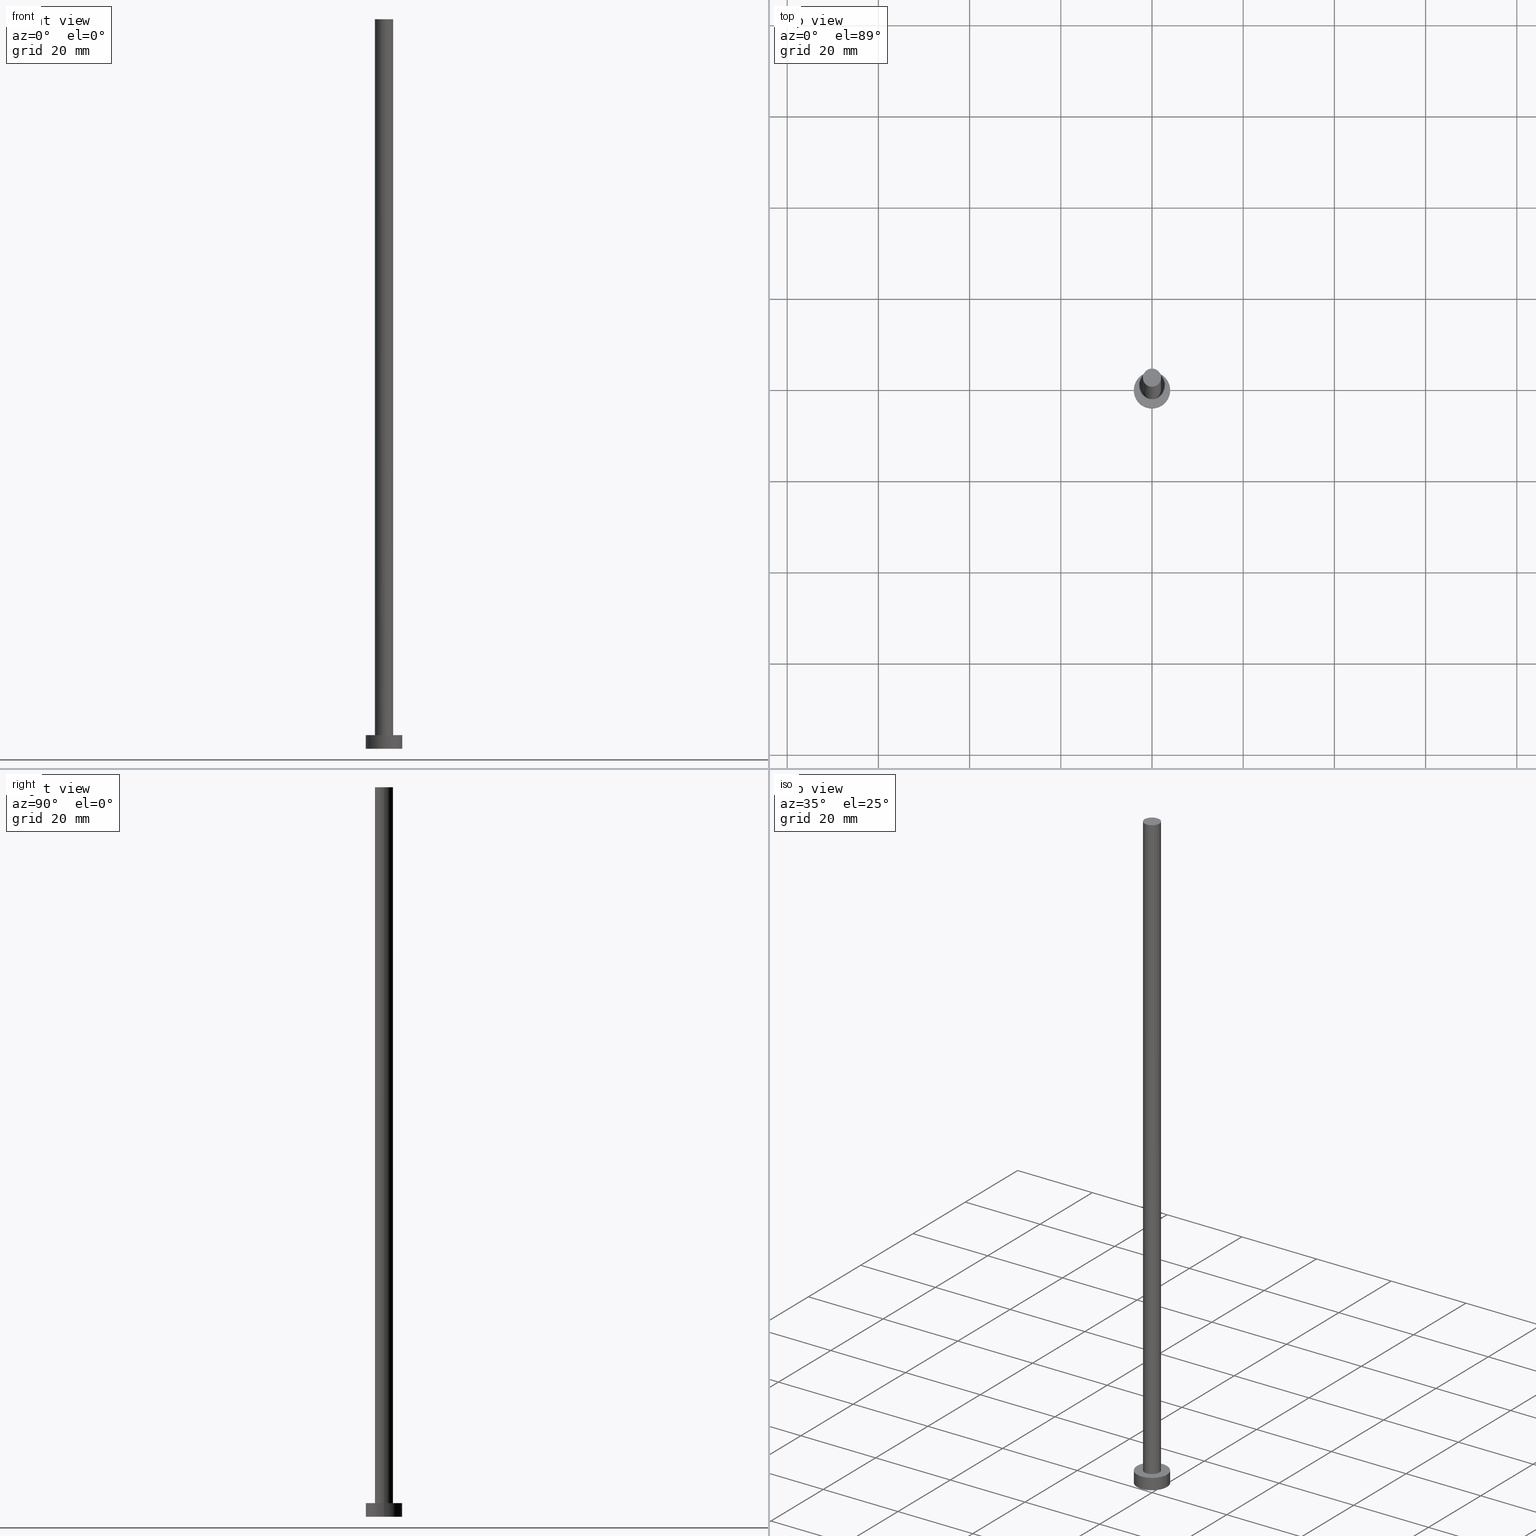
[diagram: canonical four-view strip — front | top / right | iso, engineering-drawing reading convention]
A machine part, canonical four-view strip (front | top / right | iso — engineering-drawing reading convention). The complete STEP part file that produces these views, byte-faithful:
ISO-10303-21;
HEADER;
FILE_DESCRIPTION (( 'STEP AP203' ),
    '1' );
FILE_NAME ('bf5d.STEP',
    '2023-02-13T13:57:48',
    ( '' ),
    ( '' ),
    'SwSTEP 2.0',
    'SolidWorks 2019',
    '' );
FILE_SCHEMA (( 'CONFIG_CONTROL_DESIGN' ));
ENDSEC;

DATA;
#1 = EDGE_CURVE ( 'NONE', #119, #175, #106, .T. ) ;
#2 = ORIENTED_EDGE ( 'NONE', *, *, #83, .F. ) ;
#3 = CARTESIAN_POINT ( 'NONE',  ( 0.000000000000000000, 0.000000000000000000, 3.000000000000000000 ) ) ;
#4 = LINE ( 'NONE', #241, #118 ) ;
#5 = PRODUCT_DEFINITION ( 'NEZN�M�', '', #34, #127 ) ;
#6 = CIRCLE ( 'NONE', #169, 2.000000000000000000 ) ;
#7 = EDGE_CURVE ( 'NONE', #178, #211, #46, .T. ) ;
#8 = APPROVAL_PERSON_ORGANIZATION ( #235, #28, #179 ) ;
#9 = LINE ( 'NONE', #159, #126 ) ;
#10 = CARTESIAN_POINT ( 'NONE',  ( -4.000000000000000000, 0.000000000000000000, 3.000000000000000000 ) ) ;
#11 = VERTEX_POINT ( 'NONE', #68 ) ;
#12 = EDGE_CURVE ( 'NONE', #59, #11, #4, .T. ) ;
#13 = AXIS2_PLACEMENT_3D ( 'NONE', #164, #202, #67 ) ;
#14 = DATE_AND_TIME ( #250, #245 ) ;
#15 = PERSON_AND_ORGANIZATION_ROLE ( 'classification_officer' ) ;
#16 = ADVANCED_FACE ( 'NONE', ( #160 ), #86, .T. ) ;
#17 = CC_DESIGN_APPROVAL ( #237, ( #34 ) ) ;
#18 = MANIFOLD_SOLID_BREP ( 'P�idat vysunut�m3', #206 ) ;
#19 = ADVANCED_FACE ( 'NONE', ( #234 ), #88, .T. ) ;
#20 = PLANE ( 'NONE',  #155 ) ;
#21 = CARTESIAN_POINT ( 'NONE',  ( 0.000000000000000000, 0.000000000000000000, 0.000000000000000000 ) ) ;
#22 = ORIENTED_EDGE ( 'NONE', *, *, #36, .T. ) ;
#23 = CARTESIAN_POINT ( 'NONE',  ( 4.000000000000000000, 4.898587196589412829E-16, 3.000000000000000000 ) ) ;
#24 = AXIS2_PLACEMENT_3D ( 'NONE', #3, #238, #123 ) ;
#25 = EDGE_LOOP ( 'NONE', ( #81, #134 ) ) ;
#26 = APPROVAL_PERSON_ORGANIZATION ( #145, #165, #131 ) ;
#27 = DIRECTION ( 'NONE',  ( -0.000000000000000000, -0.000000000000000000, -1.000000000000000000 ) ) ;
#28 = APPROVAL ( #101, 'NEUR�EN�' ) ;
#29 = EDGE_LOOP ( 'NONE', ( #192, #189, #196, #22 ) ) ;
#30 = CC_DESIGN_APPROVAL ( #28, ( #5 ) ) ;
#31 = APPROVAL_DATE_TIME ( #243, #165 ) ;
#32 = UNCERTAINTY_MEASURE_WITH_UNIT (LENGTH_MEASURE( 1.000000000000000082E-05 ), #105, 'distance_accuracy_value', 'NONE');
#33 = PRODUCT_DEFINITION_SHAPE ( 'NONE', 'NONE',  #5 ) ;
#34 = PRODUCT_DEFINITION_FORMATION_WITH_SPECIFIED_SOURCE ( 'LIBOVOLN�', '', #187, .NOT_KNOWN. ) ;
#35 = PERSON_AND_ORGANIZATION ( #117, #203 ) ;
#36 = EDGE_CURVE ( 'NONE', #175, #119, #6, .T. ) ;
#37 = CARTESIAN_POINT ( 'NONE',  ( 0.000000000000000000, 0.000000000000000000, 0.000000000000000000 ) ) ;
#38 = EDGE_LOOP ( 'NONE', ( #215, #2, #151, #158 ) ) ;
#39 = CIRCLE ( 'NONE', #70, 2.000000000000000000 ) ;
#40 = DIRECTION ( 'NONE',  ( -0.000000000000000000, -0.000000000000000000, -1.000000000000000000 ) ) ;
#41 = EDGE_LOOP ( 'NONE', ( #79, #156 ) ) ;
#42 = DATE_AND_TIME ( #62, #212 ) ;
#43 = DIRECTION ( 'NONE',  ( 1.000000000000000000, 0.000000000000000000, 0.000000000000000000 ) ) ;
#44 = DIRECTION ( 'NONE',  ( 0.000000000000000000, 0.000000000000000000, 1.000000000000000000 ) ) ;
#45 = CARTESIAN_POINT ( 'NONE',  ( 4.000000000000000000, 4.898587196589412829E-16, 0.000000000000000000 ) ) ;
#46 = LINE ( 'NONE', #23, #96 ) ;
#47 = ADVANCED_FACE ( 'NONE', ( #184 ), #181, .T. ) ;
#48 = CYLINDRICAL_SURFACE ( 'NONE', #94, 2.000000000000000000 ) ;
#49 = CC_DESIGN_PERSON_AND_ORGANIZATION_ASSIGNMENT ( #240, #120, ( #187 ) ) ;
#50 = LOCAL_TIME ( 14, 57, 48.00000000000000000, #204 ) ;
#51 = FACE_BOUND ( 'NONE', #153, .T. ) ;
#52 = APPROVAL_STATUS ( 'not_yet_approved' ) ;
#53 = FACE_OUTER_BOUND ( 'NONE', #91, .T. ) ;
#54 = CARTESIAN_POINT ( 'NONE',  ( 4.000000000000000000, 4.898587196589412829E-16, 3.000000000000000000 ) ) ;
#55 = CC_DESIGN_PERSON_AND_ORGANIZATION_ASSIGNMENT ( #35, #15, ( #193 ) ) ;
#56 = ORIENTED_EDGE ( 'NONE', *, *, #222, .F. ) ;
#57 = CIRCLE ( 'NONE', #24, 4.000000000000000000 ) ;
#58 = CC_DESIGN_APPROVAL ( #165, ( #193 ) ) ;
#59 = VERTEX_POINT ( 'NONE', #10 ) ;
#60 = DIRECTION ( 'NONE',  ( 1.000000000000000000, 0.000000000000000000, 0.000000000000000000 ) ) ;
#61 = ORIENTED_EDGE ( 'NONE', *, *, #116, .F. ) ;
#62 = CALENDAR_DATE ( 2023, 13, 2 ) ;
#63 =( GEOMETRIC_REPRESENTATION_CONTEXT ( 3 ) GLOBAL_UNCERTAINTY_ASSIGNED_CONTEXT ( ( #32 ) ) GLOBAL_UNIT_ASSIGNED_CONTEXT ( ( #105, #82, #87 ) ) REPRESENTATION_CONTEXT ( 'NONE', 'WORKASPACE' ) );
#64 = PERSON_AND_ORGANIZATION_ROLE ( 'creator' ) ;
#65 = DIRECTION ( 'NONE',  ( -1.000000000000000000, 0.000000000000000000, 0.000000000000000000 ) ) ;
#66 = APPLICATION_PROTOCOL_DEFINITION ( 'international standard', 'config_control_design', 1994, #205 ) ;
#67 = DIRECTION ( 'NONE',  ( 1.000000000000000000, 0.000000000000000000, 0.000000000000000000 ) ) ;
#68 = CARTESIAN_POINT ( 'NONE',  ( -4.000000000000000000, 0.000000000000000000, 0.000000000000000000 ) ) ;
#69 = ADVANCED_BREP_SHAPE_REPRESENTATION ( 'bf5d', ( #18, #136 ), #63 ) ;
#70 = AXIS2_PLACEMENT_3D ( 'NONE', #89, #115, #142 ) ;
#71 = APPLICATION_CONTEXT ( 'configuration controlled 3d designs of mechanical parts and assemblies' ) ;
#72 = SECURITY_CLASSIFICATION_LEVEL ( 'unclassified' ) ;
#73 = CARTESIAN_POINT ( 'NONE',  ( 2.000000000000000000, 2.449293598294706414E-16, 160.0000000000000000 ) ) ;
#74 = DATE_AND_TIME ( #190, #114 ) ;
#75 = CARTESIAN_POINT ( 'NONE',  ( 0.000000000000000000, 0.000000000000000000, 3.000000000000000000 ) ) ;
#76 = ORIENTED_EDGE ( 'NONE', *, *, #7, .T. ) ;
#77 = PERSON_AND_ORGANIZATION_ROLE ( 'creator' ) ;
#78 = DIRECTION ( 'NONE',  ( -1.000000000000000000, 0.000000000000000000, 0.000000000000000000 ) ) ;
#79 = ORIENTED_EDGE ( 'NONE', *, *, #83, .T. ) ;
#80 = ORIENTED_EDGE ( 'NONE', *, *, #36, .F. ) ;
#81 = ORIENTED_EDGE ( 'NONE', *, *, #180, .F. ) ;
#82 =( NAMED_UNIT ( * ) PLANE_ANGLE_UNIT ( ) SI_UNIT ( $, .RADIAN. ) );
#83 = EDGE_CURVE ( 'NONE', #59, #178, #112, .T. ) ;
#84 = DIRECTION ( 'NONE',  ( -0.000000000000000000, -0.000000000000000000, -1.000000000000000000 ) ) ;
#85 = EDGE_CURVE ( 'NONE', #252, #249, #210, .T. ) ;
#86 = CYLINDRICAL_SURFACE ( 'NONE', #221, 4.000000000000000000 ) ;
#87 =( NAMED_UNIT ( * ) SI_UNIT ( $, .STERADIAN. ) SOLID_ANGLE_UNIT ( ) );
#88 = PLANE ( 'NONE',  #171 ) ;
#89 = CARTESIAN_POINT ( 'NONE',  ( 0.000000000000000000, 0.000000000000000000, 160.0000000000000000 ) ) ;
#90 = CARTESIAN_POINT ( 'NONE',  ( 0.000000000000000000, 0.000000000000000000, 3.000000000000000000 ) ) ;
#91 = EDGE_LOOP ( 'NONE', ( #61, #195, #230, #56 ) ) ;
#92 = CARTESIAN_POINT ( 'NONE',  ( -2.000000000000000000, 0.000000000000000000, 160.0000000000000000 ) ) ;
#93 = ADVANCED_FACE ( 'NONE', ( #242 ), #48, .T. ) ;
#94 = AXIS2_PLACEMENT_3D ( 'NONE', #214, #40, #133 ) ;
#95 = APPROVAL_STATUS ( 'not_yet_approved' ) ;
#96 = VECTOR ( 'NONE', #166, 1000.000000000000000 ) ;
#97 = EDGE_CURVE ( 'NONE', #178, #59, #57, .T. ) ;
#98 = DIRECTION ( 'NONE',  ( 0.000000000000000000, 0.000000000000000000, 1.000000000000000000 ) ) ;
#99 = DIRECTION ( 'NONE',  ( 0.000000000000000000, 0.000000000000000000, 1.000000000000000000 ) ) ;
#100 = ORIENTED_EDGE ( 'NONE', *, *, #12, .F. ) ;
#101 = APPROVAL_STATUS ( 'not_yet_approved' ) ;
#102 = DIRECTION ( 'NONE',  ( 0.000000000000000000, 0.000000000000000000, 1.000000000000000000 ) ) ;
#103 = DIRECTION ( 'NONE',  ( 0.000000000000000000, 0.000000000000000000, 1.000000000000000000 ) ) ;
#104 = CC_DESIGN_PERSON_AND_ORGANIZATION_ASSIGNMENT ( #186, #170, ( #34 ) ) ;
#105 =( LENGTH_UNIT ( ) NAMED_UNIT ( * ) SI_UNIT ( .MILLI., .METRE. ) );
#106 = CIRCLE ( 'NONE', #200, 2.000000000000000000 ) ;
#107 = DIRECTION ( 'NONE',  ( -1.000000000000000000, 0.000000000000000000, 0.000000000000000000 ) ) ;
#108 = AXIS2_PLACEMENT_3D ( 'NONE', #191, #147, #78 ) ;
#109 = DIRECTION ( 'NONE',  ( 0.000000000000000000, 0.000000000000000000, 1.000000000000000000 ) ) ;
#110 = ORIENTED_EDGE ( 'NONE', *, *, #116, .T. ) ;
#111 = SHAPE_DEFINITION_REPRESENTATION ( #33, #69 ) ;
#112 = CIRCLE ( 'NONE', #244, 4.000000000000000000 ) ;
#113 = DATE_TIME_ROLE ( 'creation_date' ) ;
#114 = LOCAL_TIME ( 14, 57, 48.00000000000000000, #125 ) ;
#115 = DIRECTION ( 'NONE',  ( 0.000000000000000000, 0.000000000000000000, 1.000000000000000000 ) ) ;
#116 = EDGE_CURVE ( 'NONE', #249, #252, #39, .T. ) ;
#117 = PERSON ( 'NEUR�EN�', 'NEUR�EN�', 'NEUR�EN�', ('NEUR�EN�'), ('NEUR�EN�'), ('NEUR�EN�') ) ;
#118 = VECTOR ( 'NONE', #84, 1000.000000000000000 ) ;
#119 = VERTEX_POINT ( 'NONE', #229 ) ;
#120 = PERSON_AND_ORGANIZATION_ROLE ( 'design_owner' ) ;
#121 = PERSON_AND_ORGANIZATION ( #117, #203 ) ;
#122 = CC_DESIGN_DATE_AND_TIME_ASSIGNMENT ( #74, #113, ( #5 ) ) ;
#123 = DIRECTION ( 'NONE',  ( 1.000000000000000000, 0.000000000000000000, 0.000000000000000000 ) ) ;
#124 = DIRECTION ( 'NONE',  ( 1.000000000000000000, 0.000000000000000000, 0.000000000000000000 ) ) ;
#125 = COORDINATED_UNIVERSAL_TIME_OFFSET ( 1, 0, .AHEAD. ) ;
#126 = VECTOR ( 'NONE', #219, 1000.000000000000000 ) ;
#127 = DESIGN_CONTEXT ( 'detailed design', #205, 'design' ) ;
#128 = COORDINATED_UNIVERSAL_TIME_OFFSET ( 1, 0, .AHEAD. ) ;
#129 = EDGE_CURVE ( 'NONE', #249, #119, #194, .T. ) ;
#130 = APPROVAL_DATE_TIME ( #14, #237 ) ;
#131 = APPROVAL_ROLE ( '' ) ;
#132 = DIRECTION ( 'NONE',  ( 1.000000000000000000, 0.000000000000000000, 0.000000000000000000 ) ) ;
#133 = DIRECTION ( 'NONE',  ( -1.000000000000000000, 0.000000000000000000, 0.000000000000000000 ) ) ;
#134 = ORIENTED_EDGE ( 'NONE', *, *, #207, .F. ) ;
#135 = CC_DESIGN_DATE_AND_TIME_ASSIGNMENT ( #148, #152, ( #193 ) ) ;
#136 = AXIS2_PLACEMENT_3D ( 'NONE', #21, #231, #60 ) ;
#137 = DIRECTION ( 'NONE',  ( 1.000000000000000000, 0.000000000000000000, -0.000000000000000000 ) ) ;
#138 = APPROVAL_DATE_TIME ( #42, #28 ) ;
#139 = CARTESIAN_POINT ( 'NONE',  ( 0.000000000000000000, 0.000000000000000000, 3.000000000000000000 ) ) ;
#140 = CARTESIAN_POINT ( 'NONE',  ( 0.000000000000000000, 0.000000000000000000, 3.000000000000000000 ) ) ;
#141 = CIRCLE ( 'NONE', #183, 4.000000000000000000 ) ;
#142 = DIRECTION ( 'NONE',  ( 1.000000000000000000, 0.000000000000000000, 0.000000000000000000 ) ) ;
#143 = ORIENTED_EDGE ( 'NONE', *, *, #85, .T. ) ;
#144 = CC_DESIGN_PERSON_AND_ORGANIZATION_ASSIGNMENT ( #246, #77, ( #34 ) ) ;
#145 = PERSON_AND_ORGANIZATION ( #117, #203 ) ;
#146 = ADVANCED_FACE ( 'NONE', ( #228 ), #20, .F. ) ;
#147 = DIRECTION ( 'NONE',  ( -0.000000000000000000, -0.000000000000000000, -1.000000000000000000 ) ) ;
#148 = DATE_AND_TIME ( #247, #173 ) ;
#149 = ADVANCED_FACE ( 'NONE', ( #53 ), #253, .T. ) ;
#150 = DIRECTION ( 'NONE',  ( 1.000000000000000000, 0.000000000000000000, -0.000000000000000000 ) ) ;
#151 = ORIENTED_EDGE ( 'NONE', *, *, #12, .T. ) ;
#152 = DATE_TIME_ROLE ( 'classification_date' ) ;
#153 = EDGE_LOOP ( 'NONE', ( #80, #232 ) ) ;
#154 = EDGE_LOOP ( 'NONE', ( #254, #76, #167, #100 ) ) ;
#155 = AXIS2_PLACEMENT_3D ( 'NONE', #226, #99, #225 ) ;
#156 = ORIENTED_EDGE ( 'NONE', *, *, #97, .T. ) ;
#157 = CARTESIAN_POINT ( 'NONE',  ( 2.000000000000000000, 2.449293598294706414E-16, 160.0000000000000000 ) ) ;
#158 = ORIENTED_EDGE ( 'NONE', *, *, #180, .T. ) ;
#159 = CARTESIAN_POINT ( 'NONE',  ( -2.000000000000000000, 0.000000000000000000, 160.0000000000000000 ) ) ;
#160 = FACE_OUTER_BOUND ( 'NONE', #38, .T. ) ;
#161 = DIRECTION ( 'NONE',  ( 1.000000000000000000, 0.000000000000000000, 0.000000000000000000 ) ) ;
#162 = CIRCLE ( 'NONE', #185, 4.000000000000000000 ) ;
#163 = CARTESIAN_POINT ( 'NONE',  ( 0.000000000000000000, 0.000000000000000000, 3.000000000000000000 ) ) ;
#164 = CARTESIAN_POINT ( 'NONE',  ( 0.000000000000000000, 0.000000000000000000, 160.0000000000000000 ) ) ;
#165 = APPROVAL ( #52, 'NEUR�EN�' ) ;
#166 = DIRECTION ( 'NONE',  ( -0.000000000000000000, -0.000000000000000000, -1.000000000000000000 ) ) ;
#167 = ORIENTED_EDGE ( 'NONE', *, *, #207, .T. ) ;
#168 = ADVANCED_FACE ( 'NONE', ( #51, #213 ), #208, .T. ) ;
#169 = AXIS2_PLACEMENT_3D ( 'NONE', #139, #218, #124 ) ;
#170 = PERSON_AND_ORGANIZATION_ROLE ( 'design_supplier' ) ;
#171 = AXIS2_PLACEMENT_3D ( 'NONE', #220, #103, #137 ) ;
#172 = APPROVAL_ROLE ( '' ) ;
#173 = LOCAL_TIME ( 14, 57, 48.00000000000000000, #128 ) ;
#174 = CARTESIAN_POINT ( 'NONE',  ( 0.000000000000000000, 0.000000000000000000, 0.000000000000000000 ) ) ;
#175 = VERTEX_POINT ( 'NONE', #176 ) ;
#176 = CARTESIAN_POINT ( 'NONE',  ( -2.000000000000000000, 0.000000000000000000, 3.000000000000000000 ) ) ;
#177 = APPLICATION_PROTOCOL_DEFINITION ( 'international standard', 'config_control_design', 1994, #71 ) ;
#178 = VERTEX_POINT ( 'NONE', #54 ) ;
#179 = APPROVAL_ROLE ( '' ) ;
#180 = EDGE_CURVE ( 'NONE', #11, #211, #162, .T. ) ;
#181 = CYLINDRICAL_SURFACE ( 'NONE', #182, 4.000000000000000000 ) ;
#182 = AXIS2_PLACEMENT_3D ( 'NONE', #163, #27, #65 ) ;
#183 = AXIS2_PLACEMENT_3D ( 'NONE', #37, #109, #161 ) ;
#184 = FACE_OUTER_BOUND ( 'NONE', #154, .T. ) ;
#185 = AXIS2_PLACEMENT_3D ( 'NONE', #174, #255, #132 ) ;
#186 = PERSON_AND_ORGANIZATION ( #117, #203 ) ;
#187 = PRODUCT ( 'bf5d', 'bf5d', '', ( #216 ) ) ;
#188 = PERSON_AND_ORGANIZATION ( #117, #203 ) ;
#189 = ORIENTED_EDGE ( 'NONE', *, *, #85, .F. ) ;
#190 = CALENDAR_DATE ( 2023, 13, 2 ) ;
#191 = CARTESIAN_POINT ( 'NONE',  ( 0.000000000000000000, 0.000000000000000000, 160.0000000000000000 ) ) ;
#192 = ORIENTED_EDGE ( 'NONE', *, *, #129, .F. ) ;
#193 = SECURITY_CLASSIFICATION ( '', '', #72 ) ;
#194 = LINE ( 'NONE', #73, #236 ) ;
#195 = ORIENTED_EDGE ( 'NONE', *, *, #129, .T. ) ;
#196 = ORIENTED_EDGE ( 'NONE', *, *, #222, .T. ) ;
#197 = PRODUCT_RELATED_PRODUCT_CATEGORY ( 'detail', '', ( #187 ) ) ;
#198 = CARTESIAN_POINT ( 'NONE',  ( 0.000000000000000000, 0.000000000000000000, 3.000000000000000000 ) ) ;
#199 = DIRECTION ( 'NONE',  ( 1.000000000000000000, 0.000000000000000000, 0.000000000000000000 ) ) ;
#200 = AXIS2_PLACEMENT_3D ( 'NONE', #198, #102, #43 ) ;
#201 = CC_DESIGN_SECURITY_CLASSIFICATION ( #193, ( #34 ) ) ;
#202 = DIRECTION ( 'NONE',  ( 0.000000000000000000, 0.000000000000000000, 1.000000000000000000 ) ) ;
#203 = ORGANIZATION ( 'NEUR�EN�', 'NEUR�EN�', '' ) ;
#204 = COORDINATED_UNIVERSAL_TIME_OFFSET ( 1, 0, .AHEAD. ) ;
#205 = APPLICATION_CONTEXT ( 'configuration controlled 3d designs of mechanical parts and assemblies' ) ;
#206 = CLOSED_SHELL ( 'NONE', ( #149, #47, #16, #168, #146, #93, #19 ) ) ;
#207 = EDGE_CURVE ( 'NONE', #211, #11, #141, .T. ) ;
#208 = PLANE ( 'NONE',  #217 ) ;
#209 = EDGE_LOOP ( 'NONE', ( #143, #110 ) ) ;
#210 = CIRCLE ( 'NONE', #13, 2.000000000000000000 ) ;
#211 = VERTEX_POINT ( 'NONE', #45 ) ;
#212 = LOCAL_TIME ( 14, 57, 48.00000000000000000, #233 ) ;
#213 = FACE_OUTER_BOUND ( 'NONE', #41, .T. ) ;
#214 = CARTESIAN_POINT ( 'NONE',  ( 0.000000000000000000, 0.000000000000000000, 160.0000000000000000 ) ) ;
#215 = ORIENTED_EDGE ( 'NONE', *, *, #7, .F. ) ;
#216 = MECHANICAL_CONTEXT ( 'NONE', #71, 'mechanical' ) ;
#217 = AXIS2_PLACEMENT_3D ( 'NONE', #75, #98, #150 ) ;
#218 = DIRECTION ( 'NONE',  ( 0.000000000000000000, 0.000000000000000000, 1.000000000000000000 ) ) ;
#219 = DIRECTION ( 'NONE',  ( -0.000000000000000000, -0.000000000000000000, -1.000000000000000000 ) ) ;
#220 = CARTESIAN_POINT ( 'NONE',  ( 0.000000000000000000, 0.000000000000000000, 160.0000000000000000 ) ) ;
#221 = AXIS2_PLACEMENT_3D ( 'NONE', #140, #239, #107 ) ;
#222 = EDGE_CURVE ( 'NONE', #252, #175, #9, .T. ) ;
#223 = CC_DESIGN_PERSON_AND_ORGANIZATION_ASSIGNMENT ( #121, #64, ( #5 ) ) ;
#224 = COORDINATED_UNIVERSAL_TIME_OFFSET ( 1, 0, .AHEAD. ) ;
#225 = DIRECTION ( 'NONE',  ( 1.000000000000000000, 0.000000000000000000, -0.000000000000000000 ) ) ;
#226 = CARTESIAN_POINT ( 'NONE',  ( 0.000000000000000000, 0.000000000000000000, 0.000000000000000000 ) ) ;
#227 = CALENDAR_DATE ( 2023, 13, 2 ) ;
#228 = FACE_OUTER_BOUND ( 'NONE', #25, .T. ) ;
#229 = CARTESIAN_POINT ( 'NONE',  ( 2.000000000000000000, 2.449293598294706414E-16, 3.000000000000000000 ) ) ;
#230 = ORIENTED_EDGE ( 'NONE', *, *, #1, .T. ) ;
#231 = DIRECTION ( 'NONE',  ( 0.000000000000000000, 0.000000000000000000, 1.000000000000000000 ) ) ;
#232 = ORIENTED_EDGE ( 'NONE', *, *, #1, .F. ) ;
#233 = COORDINATED_UNIVERSAL_TIME_OFFSET ( 1, 0, .AHEAD. ) ;
#234 = FACE_OUTER_BOUND ( 'NONE', #209, .T. ) ;
#235 = PERSON_AND_ORGANIZATION ( #117, #203 ) ;
#236 = VECTOR ( 'NONE', #248, 1000.000000000000000 ) ;
#237 = APPROVAL ( #95, 'NEUR�EN�' ) ;
#238 = DIRECTION ( 'NONE',  ( 0.000000000000000000, 0.000000000000000000, 1.000000000000000000 ) ) ;
#239 = DIRECTION ( 'NONE',  ( -0.000000000000000000, -0.000000000000000000, -1.000000000000000000 ) ) ;
#240 = PERSON_AND_ORGANIZATION ( #117, #203 ) ;
#241 = CARTESIAN_POINT ( 'NONE',  ( -4.000000000000000000, 0.000000000000000000, 3.000000000000000000 ) ) ;
#242 = FACE_OUTER_BOUND ( 'NONE', #29, .T. ) ;
#243 = DATE_AND_TIME ( #227, #50 ) ;
#244 = AXIS2_PLACEMENT_3D ( 'NONE', #90, #44, #199 ) ;
#245 = LOCAL_TIME ( 14, 57, 48.00000000000000000, #224 ) ;
#246 = PERSON_AND_ORGANIZATION ( #117, #203 ) ;
#247 = CALENDAR_DATE ( 2023, 13, 2 ) ;
#248 = DIRECTION ( 'NONE',  ( -0.000000000000000000, -0.000000000000000000, -1.000000000000000000 ) ) ;
#249 = VERTEX_POINT ( 'NONE', #157 ) ;
#250 = CALENDAR_DATE ( 2023, 13, 2 ) ;
#251 = APPROVAL_PERSON_ORGANIZATION ( #188, #237, #172 ) ;
#252 = VERTEX_POINT ( 'NONE', #92 ) ;
#253 = CYLINDRICAL_SURFACE ( 'NONE', #108, 2.000000000000000000 ) ;
#254 = ORIENTED_EDGE ( 'NONE', *, *, #97, .F. ) ;
#255 = DIRECTION ( 'NONE',  ( 0.000000000000000000, 0.000000000000000000, 1.000000000000000000 ) ) ;
ENDSEC;
END-ISO-10303-21;
